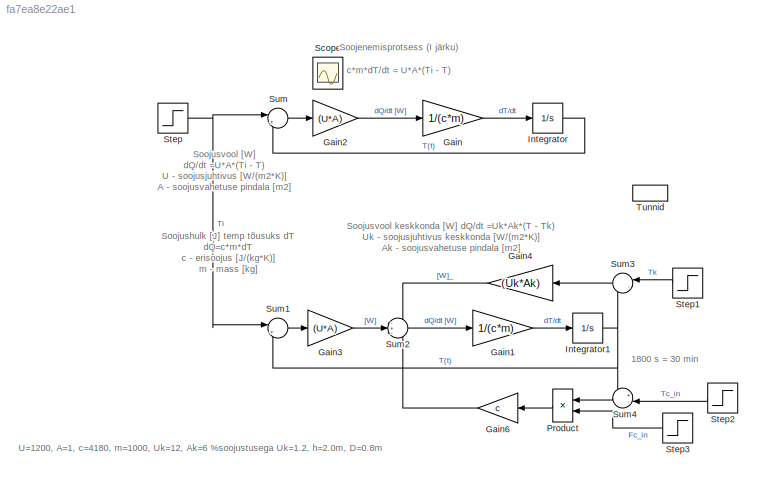
MODEL slx_fa7ea8e22ae1
KIND model
CONFIG AbsTol = auto
CONFIG EnableMultiTasking = on
CONFIG FixedStep = auto
CONFIG MaxStep = auto
CONFIG MinStep = auto
CONFIG RelTol = 1e-3
CONFIG SampleTimeConstraint = Unconstrained
CONFIG Solver = ode45
CONFIG SolverName = ode45
CONFIG StartTime = 0.0
CONFIG StopTime = 11000.0
BLOCK [Gain] Gain
  Gain = 1/(c*m)
  OutDataTypeStr = Inherit: Inherit via internal rule
  ParamDataTypeStr = Inherit: Inherit via internal rule
  SaturateOnIntegerOverflow = off
BLOCK [Gain] Gain1
  Gain = 1/(c*m)
  OutDataTypeStr = Inherit: Inherit via internal rule
  ParamDataTypeStr = Inherit: Inherit via internal rule
  SaturateOnIntegerOverflow = off
BLOCK [Gain] Gain2
  Gain = (U*A)
  OutDataTypeStr = Inherit: Inherit via internal rule
  ParamDataTypeStr = Inherit: Inherit via internal rule
  SaturateOnIntegerOverflow = off
BLOCK [Gain] Gain3
  Gain = (U*A)
  OutDataTypeStr = Inherit: Inherit via internal rule
  ParamDataTypeStr = Inherit: Inherit via internal rule
  SaturateOnIntegerOverflow = off
BLOCK [Gain] Gain4
  Gain = (Uk*Ak)
  OutDataTypeStr = Inherit: Inherit via internal rule
  ParamDataTypeStr = Inherit: Inherit via internal rule
  SaturateOnIntegerOverflow = off
BLOCK [Gain] Gain6
  Gain = c
  OutDataTypeStr = Inherit: Inherit via internal rule
  ParamDataTypeStr = Inherit: Inherit via internal rule
  SaturateOnIntegerOverflow = off
BLOCK [Integrator] Integrator
  InitialCondition = 15
  Ports = [1, 1]
BLOCK [Integrator] Integrator1
  InitialCondition = 15
  Ports = [1, 1]
BLOCK [Product] Product
  InputSameDT = off
  OutDataTypeStr = Inherit: Inherit via internal rule
  Ports = [2, 1]
  SaturateOnIntegerOverflow = off
BLOCK [Scope] Scope
  IOType = viewer
  NumInputPorts = 1
  Ports = []
  ScopeSpecificationString = Simulink.scopes.TimeScopeBlockCfg('CurrentConfiguration', extmgr.ConfigurationSet(extmgr.Configuration('Core','General UI',true),extmgr.Configuration('Core','Source UI',true),extmgr.Configuration('Sources','WiredSimulink',true),extmgr.Configuration('Visuals','Time Domain',true,'SerializedDisplays',{struct('MinYLimReal','-7.5','MaxYLimReal','67.5','YLabelReal','','MinYLimMag','0.00000','MaxYLimMag'...<+2786ch>
BLOCK [Step] Step
  After = 60
  SampleTime = 0
  Time = 0
BLOCK [Step] Step1
  After = 15
  SampleTime = 0
  Time = 0
BLOCK [Step] Step2
  After = 15
  SampleTime = 0
  Time = 0
BLOCK [Step] Step3
  After = 0.2
  SampleTime = 0
  Time = 1800
BLOCK [Sum] Sum
  IconShape = round
  InputSameDT = off
  Inputs = |+-
  OutDataTypeStr = Inherit: Inherit via internal rule
  Ports = [2, 1]
  SaturateOnIntegerOverflow = off
BLOCK [Sum] Sum1
  IconShape = round
  InputSameDT = off
  Inputs = |+-
  OutDataTypeStr = Inherit: Inherit via internal rule
  Ports = [2, 1]
  SaturateOnIntegerOverflow = off
BLOCK [Sum] Sum2
  IconShape = round
  InputSameDT = off
  Inputs = -+-
  OutDataTypeStr = Inherit: Inherit via internal rule
  Ports = [3, 1]
  SaturateOnIntegerOverflow = off
BLOCK [Sum] Sum3
  IconShape = round
  InputSameDT = off
  Inputs = |-+
  OutDataTypeStr = Inherit: Inherit via internal rule
  Ports = [2, 1]
  SaturateOnIntegerOverflow = off
BLOCK [Sum] Sum4
  IconShape = round
  InputSameDT = off
  Inputs = +-|
  OutDataTypeStr = Inherit: Inherit via internal rule
  Ports = [2, 1]
  SaturateOnIntegerOverflow = off
BLOCK [DiscretePulseGenerator] Tunnid
  Amplitude = 60
  Period = 3600
  Ports = [0, 1]
  PulseType = Time based
ANNOTATION (root): 1800 s = 30 min
ANNOTATION (root): Soojenemisprotsess (I järku) c*m*dT/dt = U*A*(Ti - T)
ANNOTATION (root): Soojushulk [J] temp tõusuks dT dQ=c*m*dT c - erisoojus [J/(kg*K)] m - mass [kg]
ANNOTATION (root): Soojusvool [W] dQ/dt =U*A*(Ti - T) U - soojusjuhtivus [W/(m2*K)] A - soojusvahetuse pindala [m2]
ANNOTATION (root): Soojusvool keskkonda [W] dQ/dt =Uk*Ak*(T - Tk) Uk - soojusjuhtivus keskkonda [W/(m2*K)] Ak - soojusvahetuse pindala [m2]
ANNOTATION (root): U=1200, A=1, c=4180, m=1000, Uk=12, Ak=6 %soojustusega Uk=1.2, h=2.0m, D=0.8m
LINE Gain1:1 -> Integrator1:1
LINE Gain2:1 -> Gain:1
LINE Gain3:1 -> Sum2:2
LINE Gain4:1 -> Sum2:1
LINE Gain6:1 -> Sum2:3
LINE Gain:1 -> Integrator:1
NET Integrator1:1 -> Sum1:2, Sum3:2, Sum4:1
LINE Integrator:1 -> Sum:2
LINE Product:1 -> Gain6:1
LINE Step1:1 -> Sum3:1
LINE Step2:1 -> Sum4:2
LINE Step3:1 -> Product:2
NET Step:1 -> Sum1:1, Sum:1
LINE Sum1:1 -> Gain3:1
LINE Sum2:1 -> Gain1:1
LINE Sum3:1 -> Gain4:1
LINE Sum4:1 -> Product:1
LINE Sum:1 -> Gain2:1
note: NET lines group one-source signal fan-out (src -> all destinations, sorted); 1:1 wires keep LINE
